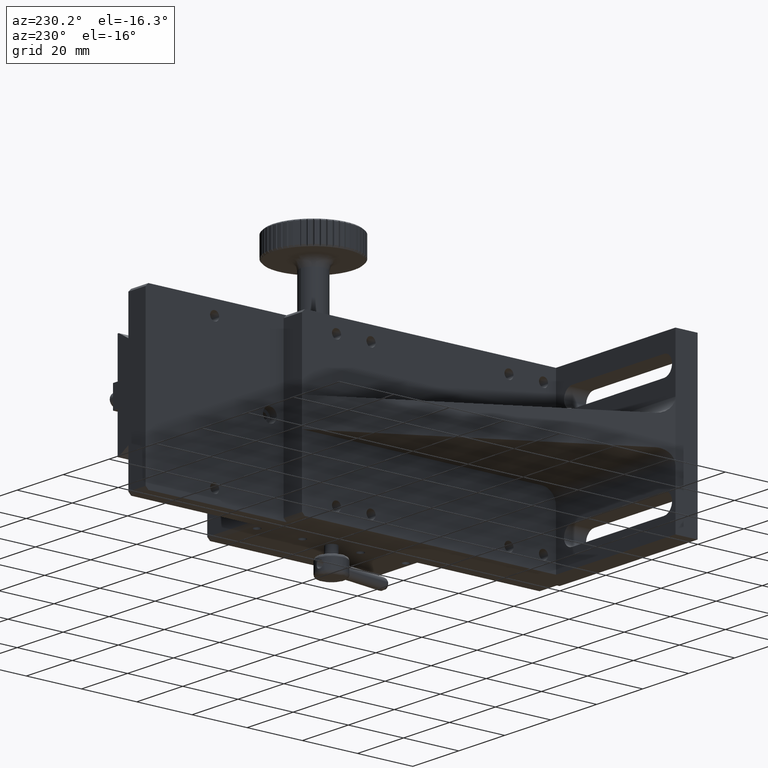
[diagram: clean part render]
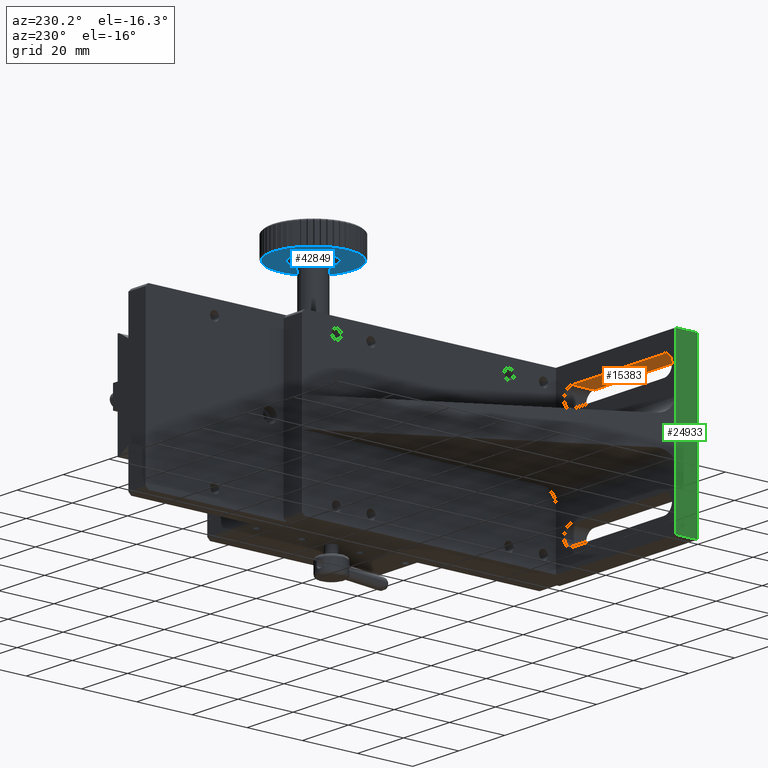
[diagram: same view with three faces highlighted in distinct colors, each labeled with its STEP entity id]
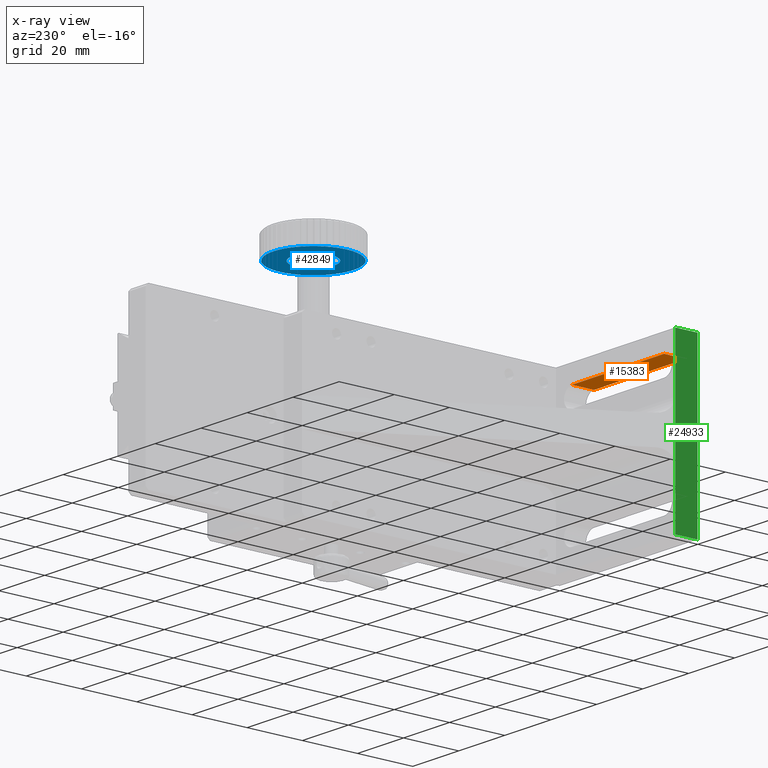
[diagram: x-ray of the same camera — body ghosted, the three highlighted faces saturated]
A machine part, auxiliary view with three faces highlighted in distinct colors.
The next image is the same camera in x-ray (body ghosted, the three faces saturated) — at least one of them is partly hidden behind the body in this view.
Their STEP definitions:

[orange] entity #15383 — the highlighted planar face has unit normal (0, -0, 1).
#2537 = AXIS2_PLACEMENT_3D ( 'NONE', #90711, #50768, #56721 ) ;
#5110 = ORIENTED_EDGE ( 'NONE', *, *, #97096, .F. ) ;
#6904 = CARTESIAN_POINT ( 'NONE',  ( -5.867379035314098878, 63.81536696983125267, 116.2794056282235289 ) ) ;
#11328 = VERTEX_POINT ( 'NONE', #39600 ) ;
#14476 = LINE ( 'NONE', #70603, #29400 ) ;
#15383 = ADVANCED_FACE ( 'NONE', ( #65343 ), #66943, .F. ) ;
#16083 = CARTESIAN_POINT ( 'NONE',  ( 41.13262096468594819, 63.81536696983123846, 116.2794056282235147 ) ) ;
#20233 = ORIENTED_EDGE ( 'NONE', *, *, #68047, .F. ) ;
#22796 = EDGE_LOOP ( 'NONE', ( #5110, #88088, #20233, #53390 ) ) ;
#24804 = CARTESIAN_POINT ( 'NONE',  ( -5.867379035314083779, 55.81536696983123136, 116.2794056282235289 ) ) ;
#29400 = VECTOR ( 'NONE', #72202, 1000.000000000000000 ) ;
#31059 = DIRECTION ( 'NONE',  ( 0.000000000000000000, 1.000000000000000000, 0.000000000000000000 ) ) ;
#31831 = LINE ( 'NONE', #24804, #106785 ) ;
#33420 = DIRECTION ( 'NONE',  ( -0.000000000000000000, -1.000000000000000000, -0.000000000000000000 ) ) ;
#33847 = DIRECTION ( 'NONE',  ( 1.000000000000000000, -1.334402673828313339E-16, 0.000000000000000000 ) ) ;
#39600 = CARTESIAN_POINT ( 'NONE',  ( 34.13262096468590556, 55.81536696983123136, 116.2794056282232589 ) ) ;
#39692 = LINE ( 'NONE', #97383, #82612 ) ;
#50768 = DIRECTION ( 'NONE',  ( 6.982962677686266711E-15, -0.000000000000000000, 1.000000000000000000 ) ) ;
#52746 = EDGE_CURVE ( 'NONE', #11328, #57044, #14476, .T. ) ;
#52803 = VERTEX_POINT ( 'NONE', #6904 ) ;
#53151 = EDGE_CURVE ( 'NONE', #52803, #95173, #66748, .T. ) ;
#53390 = ORIENTED_EDGE ( 'NONE', *, *, #53151, .T. ) ;
#56721 = DIRECTION ( 'NONE',  ( 1.000000000000000000, 0.000000000000000000, -6.982962677686266711E-15 ) ) ;
#57044 = VERTEX_POINT ( 'NONE', #95124 ) ;
#65343 = FACE_OUTER_BOUND ( 'NONE', #22796, .T. ) ;
#66748 = LINE ( 'NONE', #16083, #81096 ) ;
#66943 = PLANE ( 'NONE',  #2537 ) ;
#68047 = EDGE_CURVE ( 'NONE', #52803, #57044, #31831, .T. ) ;
#70603 = CARTESIAN_POINT ( 'NONE',  ( 19.13262096468574924, 55.81536696983123846, 116.2794056282232589 ) ) ;
#72202 = DIRECTION ( 'NONE',  ( -1.000000000000000000, -0.000000000000000000, 0.000000000000000000 ) ) ;
#81096 = VECTOR ( 'NONE', #33847, 1000.000000000000000 ) ;
#82612 = VECTOR ( 'NONE', #31059, 1000.000000000000000 ) ;
#87727 = CARTESIAN_POINT ( 'NONE',  ( 34.13262096468590556, 63.81536696983123846, 116.2794056282233868 ) ) ;
#88088 = ORIENTED_EDGE ( 'NONE', *, *, #52746, .T. ) ;
#90711 = CARTESIAN_POINT ( 'NONE',  ( 34.13262096468592688, 55.81536696983123136, 116.2794056282232589 ) ) ;
#95124 = CARTESIAN_POINT ( 'NONE',  ( -5.867379035314099767, 55.81536696983123846, 116.2794056282233868 ) ) ;
#95173 = VERTEX_POINT ( 'NONE', #87727 ) ;
#97096 = EDGE_CURVE ( 'NONE', #11328, #95173, #39692, .T. ) ;
#97383 = CARTESIAN_POINT ( 'NONE',  ( 34.13262096468592688, 55.81536696983123136, 116.2794056282232589 ) ) ;
#106785 = VECTOR ( 'NONE', #33420, 1000.000000000000000 ) ;

[blue] entity #42849 — the highlighted planar face has unit normal (0, -0, 1).
#131 = VERTEX_POINT ( 'NONE', #37341 ) ;
#503 = DIRECTION ( 'NONE',  ( 3.700743415417198986E-15, -6.476300976980043794E-15, 1.000000000000000000 ) ) ;
#636 = DIRECTION ( 'NONE',  ( 3.700743415417198986E-15, -6.476300976980043794E-15, 1.000000000000000000 ) ) ;
#944 = ORIENTED_EDGE ( 'NONE', *, *, #26462, .F. ) ;
#1025 = VERTEX_POINT ( 'NONE', #54408 ) ;
#1046 = CARTESIAN_POINT ( 'NONE',  ( 81.33806467964203080, 129.3552306186409169, 147.1794056287578485 ) ) ;
#1123 = CARTESIAN_POINT ( 'NONE',  ( 53.07635763115258953, 134.7464395702529032, 147.1794056287579338 ) ) ;
#1265 = VERTEX_POINT ( 'NONE', #77657 ) ;
#1292 = CARTESIAN_POINT ( 'NONE',  ( 56.94074408146641275, 140.8357382494265551, 147.1794056287579906 ) ) ;
#1663 = VERTEX_POINT ( 'NONE', #23100 ) ;
#1671 = DIRECTION ( 'NONE',  ( 3.700743415417198986E-15, -6.476300976980043794E-15, 1.000000000000000000 ) ) ;
#1694 = CARTESIAN_POINT ( 'NONE',  ( 66.86667711743220366, 144.7656931518159240, 147.1794056287579338 ) ) ;
#1712 = CARTESIAN_POINT ( 'NONE',  ( 66.86667711743217524, 130.2656931518159809, 147.1794056287579053 ) ) ;
#1744 = CARTESIAN_POINT ( 'NONE',  ( 66.86667711743217524, 130.2656931518159809, 147.1794056287579053 ) ) ;
#1761 = ORIENTED_EDGE ( 'NONE', *, *, #52402, .F. ) ;
#2661 = CARTESIAN_POINT ( 'NONE',  ( 66.86667711743217524, 130.2656931518159809, 147.1794056287579053 ) ) ;
#2707 = CARTESIAN_POINT ( 'NONE',  ( 66.86667711743217524, 137.7656931518159809, 147.1794056287580190 ) ) ;
#2830 = ORIENTED_EDGE ( 'NONE', *, *, #80506, .F. ) ;
#3141 = VERTEX_POINT ( 'NONE', #86699 ) ;
#3383 = CIRCLE ( 'NONE', #70644, 14.49999999999998579 ) ;
#3554 = DIRECTION ( 'NONE',  ( 0.000000000000000000, -1.000000000000000000, -5.742532885992194660E-15 ) ) ;
#3580 = DIRECTION ( 'NONE',  ( 3.700743415417198986E-15, -6.476300976980043794E-15, 1.000000000000000000 ) ) ;
#3687 = CARTESIAN_POINT ( 'NONE',  ( 66.86667711743217524, 130.2656931518159809, 147.1794056287579053 ) ) ;
#3953 = EDGE_CURVE ( 'NONE', #35547, #131, #106422, .T. ) ;
#5477 = DIRECTION ( 'NONE',  ( 0.000000000000000000, -1.000000000000000000, -5.742532885992194660E-15 ) ) ;
#5483 = DIRECTION ( 'NONE',  ( 0.000000000000000000, -1.000000000000000000, -5.742532885992194660E-15 ) ) ;
#5622 = VERTEX_POINT ( 'NONE', #30499 ) ;
#5640 = ORIENTED_EDGE ( 'NONE', *, *, #34449, .F. ) ;
#5960 = CARTESIAN_POINT ( 'NONE',  ( 80.65699660371184621, 134.7464395702526758, 147.1794056287579053 ) ) ;
#6004 = CIRCLE ( 'NONE', #68021, 14.49999999999998579 ) ;
#6198 = AXIS2_PLACEMENT_3D ( 'NONE', #28527, #102420, #12883 ) ;
#6206 = CARTESIAN_POINT ( 'NONE',  ( 66.86667711743217524, 130.2656931518159809, 147.1794056287579053 ) ) ;
#6235 = ORIENTED_EDGE ( 'NONE', *, *, #62872, .F. ) ;
#6552 = DIRECTION ( 'NONE',  ( 3.700743415417198986E-15, -6.476300976980043794E-15, 1.000000000000000000 ) ) ;
#6765 = DIRECTION ( 'NONE',  ( 3.700743415417198986E-15, -6.476300976980043794E-15, 1.000000000000000000 ) ) ;
#6769 = EDGE_CURVE ( 'NONE', #97453, #62200, #71344, .T. ) ;
#6812 = EDGE_CURVE ( 'NONE', #98140, #15489, #18001, .T. ) ;
#7128 = VERTEX_POINT ( 'NONE', #97655 ) ;
#7144 = CARTESIAN_POINT ( 'NONE',  ( 66.86667711743217524, 130.2656931518159809, 147.1794056287579053 ) ) ;
#7544 = ORIENTED_EDGE ( 'NONE', *, *, #87394, .F. ) ;
#7792 = CARTESIAN_POINT ( 'NONE',  ( 79.98666937818933320, 124.0918934241224179, 147.1794056287578201 ) ) ;
#7814 = DIRECTION ( 'NONE',  ( 3.700743415417198986E-15, -6.476300976980043794E-15, 1.000000000000000000 ) ) ;
#7847 = CIRCLE ( 'NONE', #30270, 14.49999999999998579 ) ;
#7962 = VERTEX_POINT ( 'NONE', #100521 ) ;
#8068 = EDGE_LOOP ( 'NONE', ( #16895, #2830, #27463, #13351, #71328, #44607, #70820, #101737, #98692, #106048, #84897, #50104, #73571, #55818, #49359, #41964, #17503, #105717, #13105, #29899, #44539, #944, #79866, #69831, #53290, #57913, #48984, #7544, #18645, #5640, #42339, #37679, #36017, #59750, #1761, #70823, #55929, #80836, #84976, #9377, #97763, #49813, #35223, #80632, #23314, #6235, #93384, #101394, #84777, #34315 ) ) ;
#8169 = DIRECTION ( 'NONE',  ( 0.000000000000000000, -1.000000000000000000, -5.742532885992194660E-15 ) ) ;
#8347 = DIRECTION ( 'NONE',  ( 0.000000000000000000, -1.000000000000000000, -5.742532885992194660E-15 ) ) ;
#8915 = EDGE_CURVE ( 'NONE', #80606, #69644, #71412, .T. ) ;
#9377 = ORIENTED_EDGE ( 'NONE', *, *, #29855, .F. ) ;
#9398 = EDGE_CURVE ( 'NONE', #99216, #98140, #58672, .T. ) ;
#9613 = EDGE_LOOP ( 'NONE', ( #77430, #105311 ) ) ;
#9847 = AXIS2_PLACEMENT_3D ( 'NONE', #38765, #72751, #63036 ) ;
#10300 = VERTEX_POINT ( 'NONE', #23196 ) ;
#10466 = DIRECTION ( 'NONE',  ( 0.000000000000000000, -1.000000000000000000, -5.742532885992194660E-15 ) ) ;
#10473 = CARTESIAN_POINT ( 'NONE',  ( 66.86667711743217524, 130.2656931518159809, 147.1794056287579053 ) ) ;
#10736 = DIRECTION ( 'NONE',  ( 3.700743415417198986E-15, -6.476300976980043794E-15, 1.000000000000000000 ) ) ;
#11281 = DIRECTION ( 'NONE',  ( 3.700743415417198986E-15, -6.476300976980043794E-15, 1.000000000000000000 ) ) ;
#11673 = AXIS2_PLACEMENT_3D ( 'NONE', #75107, #66449, #84277 ) ;
#11911 = EDGE_CURVE ( 'NONE', #50877, #82335, #53457, .T. ) ;
#12000 = DIRECTION ( 'NONE',  ( 0.000000000000000000, -1.000000000000000000, -5.742532885992194660E-15 ) ) ;
#12089 = AXIS2_PLACEMENT_3D ( 'NONE', #85944, #54579, #12000 ) ;
#12226 = AXIS2_PLACEMENT_3D ( 'NONE', #7144, #55711, #81091 ) ;
#12383 = AXIS2_PLACEMENT_3D ( 'NONE', #29018, #29550, #54354 ) ;
#12595 = CARTESIAN_POINT ( 'NONE',  ( 65.04934523075000641, 144.6513563208758910, 147.1794056287579906 ) ) ;
#12838 = EDGE_CURVE ( 'NONE', #1265, #32559, #31765, .T. ) ;
#12883 = DIRECTION ( 'NONE',  ( 0.000000000000000000, -1.000000000000000000, -5.742532885992194660E-15 ) ) ;
#12921 = VERTEX_POINT ( 'NONE', #33492 ) ;
#13053 = DIRECTION ( 'NONE',  ( 3.700743415417198986E-15, -6.476300976980043794E-15, 1.000000000000000000 ) ) ;
#13105 = ORIENTED_EDGE ( 'NONE', *, *, #79715, .F. ) ;
#13351 = ORIENTED_EDGE ( 'NONE', *, *, #66754, .F. ) ;
#13540 = DIRECTION ( 'NONE',  ( 3.700743415417198986E-15, -6.476300976980043794E-15, 1.000000000000000000 ) ) ;
#13601 = CARTESIAN_POINT ( 'NONE',  ( 66.86667711743217524, 130.2656931518159809, 147.1794056287579053 ) ) ;
#13768 = VERTEX_POINT ( 'NONE', #16388 ) ;
#13793 = CARTESIAN_POINT ( 'NONE',  ( 66.86667711743217524, 130.2656931518159809, 147.1794056287579053 ) ) ;
#13919 = VERTEX_POINT ( 'NONE', #57895 ) ;
#13978 = CARTESIAN_POINT ( 'NONE',  ( 75.38956327567291282, 118.5349467333792290, 147.1794056287577916 ) ) ;
#14158 = DIRECTION ( 'NONE',  ( 0.000000000000000000, -1.000000000000000000, -5.742532885992194660E-15 ) ) ;
#15252 = EDGE_CURVE ( 'NONE', #15489, #50877, #6004, .T. ) ;
#15344 = CARTESIAN_POINT ( 'NONE',  ( 81.10984225299809225, 132.9827222133089322, 147.1794056287578769 ) ) ;
#15489 = VERTEX_POINT ( 'NONE', #57776 ) ;
#16388 = CARTESIAN_POINT ( 'NONE',  ( 53.74668485667505280, 136.4394928795096860, 147.1794056287579622 ) ) ;
#16895 = ORIENTED_EDGE ( 'NONE', *, *, #28054, .F. ) ;
#17289 = AXIS2_PLACEMENT_3D ( 'NONE', #13601, #46494, #28718 ) ;
#17503 = ORIENTED_EDGE ( 'NONE', *, *, #50214, .F. ) ;
#17973 = DIRECTION ( 'NONE',  ( 0.000000000000000000, -1.000000000000000000, -5.742532885992194660E-15 ) ) ;
#18001 = CIRCLE ( 'NONE', #67956, 14.49999999999998579 ) ;
#18215 =( BOUNDED_CURVE ( )  B_SPLINE_CURVE ( 3, ( #2707, #53972, #35653, #37776 ),
 .UNSPECIFIED., .F., .T. ) 
 B_SPLINE_CURVE_WITH_KNOTS ( ( 4, 4 ),
 ( 0.000000000000000000, 1.000000000000000000 ),
 .UNSPECIFIED. ) 
 CURVE ( )  GEOMETRIC_REPRESENTATION_ITEM ( )  RATIONAL_B_SPLINE_CURVE ( ( 1.000000000000000000, 0.3333333333333345916, 0.3333333333333345916, 1.000000000000000000 ) ) 
 REPRESENTATION_ITEM ( '' )  );
#18498 = AXIS2_PLACEMENT_3D ( 'NONE', #71664, #98064, #79793 ) ;
#18597 = CARTESIAN_POINT ( 'NONE',  ( 66.86667711743217524, 130.2656931518159809, 147.1794056287579053 ) ) ;
#18606 = CIRCLE ( 'NONE', #87548, 14.49999999999998579 ) ;
#18645 = ORIENTED_EDGE ( 'NONE', *, *, #57623, .F. ) ;
#18871 = CARTESIAN_POINT ( 'NONE',  ( 66.86667711743217524, 130.2656931518159809, 147.1794056287579053 ) ) ;
#19003 = CIRCLE ( 'NONE', #74142, 14.49999999999998579 ) ;
#19260 = CARTESIAN_POINT ( 'NONE',  ( 81.86667711743217524, 130.2656931518160093, 147.1794056287579338 ) ) ;
#19779 = CARTESIAN_POINT ( 'NONE',  ( 66.86667711743217524, 130.2656931518159809, 147.1794056287579053 ) ) ;
#20160 = CIRCLE ( 'NONE', #87805, 14.49999999999998579 ) ;
#20508 = VERTEX_POINT ( 'NONE', #27603 ) ;
#21168 = CARTESIAN_POINT ( 'NONE',  ( 66.86667711743217524, 130.2656931518159809, 147.1794056287579053 ) ) ;
#21517 = CARTESIAN_POINT ( 'NONE',  ( 66.86667711743217524, 130.2656931518159809, 147.1794056287579053 ) ) ;
#21636 = CARTESIAN_POINT ( 'NONE',  ( 66.86667711743217524, 130.2656931518159809, 147.1794056287579053 ) ) ;
#21746 = EDGE_CURVE ( 'NONE', #49006, #20508, #90652, .T. ) ;
#21905 = CARTESIAN_POINT ( 'NONE',  ( 59.88124884295720562, 117.5592462911801306, 147.1794056287578485 ) ) ;
#22148 = CARTESIAN_POINT ( 'NONE',  ( 66.86667711743217524, 130.2656931518159809, 147.1794056287579053 ) ) ;
#22300 = EDGE_CURVE ( 'NONE', #51538, #51313, #45898, .T. ) ;
#22607 = AXIS2_PLACEMENT_3D ( 'NONE', #71514, #38610, #103868 ) ;
#23100 = CARTESIAN_POINT ( 'NONE',  ( 80.65699660371178936, 125.7849467333792006, 147.1794056287578485 ) ) ;
#23196 = CARTESIAN_POINT ( 'NONE',  ( 63.26067375354202227, 144.3101489881811119, 147.1794056287579906 ) ) ;
#23314 = ORIENTED_EDGE ( 'NONE', *, *, #100958, .F. ) ;
#23617 = CARTESIAN_POINT ( 'NONE',  ( 52.62351198186630796, 132.9827222133091595, 147.1794056287579338 ) ) ;
#23775 = CARTESIAN_POINT ( 'NONE',  ( 65.04934523074962271, 115.8800299827561986, 147.1794056287577916 ) ) ;
#24785 = EDGE_CURVE ( 'NONE', #72781, #55816, #94195, .T. ) ;
#25093 = EDGE_CURVE ( 'NONE', #62200, #37516, #45917, .T. ) ;
#25280 = CIRCLE ( 'NONE', #71783, 14.49999999999998579 ) ;
#25484 = DIRECTION ( 'NONE',  ( 3.700743415417198986E-15, -6.476300976980043794E-15, 1.000000000000000000 ) ) ;
#25529 = CIRCLE ( 'NONE', #53100, 14.49999999999998579 ) ;
#25603 = AXIS2_PLACEMENT_3D ( 'NONE', #93212, #28991, #52734 ) ;
#25609 = CARTESIAN_POINT ( 'NONE',  ( 66.86667711743217524, 130.2656931518159809, 147.1794056287579053 ) ) ;
#26012 = CIRCLE ( 'NONE', #12226, 14.49999999999998579 ) ;
#26164 = CIRCLE ( 'NONE', #12383, 14.49999999999998579 ) ;
#26462 = EDGE_CURVE ( 'NONE', #94324, #82586, #25280, .T. ) ;
#27463 = ORIENTED_EDGE ( 'NONE', *, *, #99458, .F. ) ;
#27593 = AXIS2_PLACEMENT_3D ( 'NONE', #21168, #54072, #5477 ) ;
#27603 = CARTESIAN_POINT ( 'NONE',  ( 58.34379095919154423, 141.9964395702527895, 147.1794056287579906 ) ) ;
#27628 = AXIS2_PLACEMENT_3D ( 'NONE', #18871, #68468, #43665 ) ;
#27865 = DIRECTION ( 'NONE',  ( 3.700743415417198986E-15, -6.476300976980043794E-15, 1.000000000000000000 ) ) ;
#28054 = EDGE_CURVE ( 'NONE', #58412, #67758, #87150, .T. ) ;
#28346 = EDGE_CURVE ( 'NONE', #87662, #71740, #57828, .T. ) ;
#28392 = CARTESIAN_POINT ( 'NONE',  ( 66.86667711743221787, 122.7656931518159524, 147.1794056287579338 ) ) ;
#28475 = EDGE_CURVE ( 'NONE', #69644, #1025, #7847, .T. ) ;
#28517 = EDGE_CURVE ( 'NONE', #7128, #92755, #70055, .T. ) ;
#28527 = CARTESIAN_POINT ( 'NONE',  ( 66.86667711743217524, 130.2656931518159809, 147.1794056287579053 ) ) ;
#28642 = AXIS2_PLACEMENT_3D ( 'NONE', #103222, #69792, #102685 ) ;
#28718 = DIRECTION ( 'NONE',  ( 0.000000000000000000, -1.000000000000000000, -5.742532885992194660E-15 ) ) ;
#28991 = DIRECTION ( 'NONE',  ( 3.700743415417198986E-15, -6.476300976980043794E-15, 1.000000000000000000 ) ) ;
#29018 = CARTESIAN_POINT ( 'NONE',  ( 66.86667711743217524, 130.2656931518159809, 147.1794056287579053 ) ) ;
#29550 = DIRECTION ( 'NONE',  ( 3.700743415417198986E-15, -6.476300976980043794E-15, 1.000000000000000000 ) ) ;
#29614 = CARTESIAN_POINT ( 'NONE',  ( 66.86667711743217524, 130.2656931518159809, 147.1794056287579053 ) ) ;
#29855 = EDGE_CURVE ( 'NONE', #63884, #78811, #77223, .T. ) ;
#29899 = ORIENTED_EDGE ( 'NONE', *, *, #24785, .F. ) ;
#30270 = AXIS2_PLACEMENT_3D ( 'NONE', #52671, #27865, #3554 ) ;
#30271 = EDGE_CURVE ( 'NONE', #71740, #94324, #25529, .T. ) ;
#30400 = CIRCLE ( 'NONE', #45977, 14.49999999999998579 ) ;
#30496 = DIRECTION ( 'NONE',  ( 3.700743415417198986E-15, -6.476300976980043794E-15, 1.000000000000000000 ) ) ;
#30499 = CARTESIAN_POINT ( 'NONE',  ( 63.26067375354165989, 116.2212373154509635, 147.1794056287578201 ) ) ;
#30842 = EDGE_CURVE ( 'NONE', #82335, #93707, #103061, .T. ) ;
#31765 = CIRCLE ( 'NONE', #61097, 14.49999999999998579 ) ;
#31964 = CARTESIAN_POINT ( 'NONE',  ( 75.38956327567302651, 141.9964395702526474, 147.1794056287579338 ) ) ;
#32069 = VERTEX_POINT ( 'NONE', #1046 ) ;
#32121 = AXIS2_PLACEMENT_3D ( 'NONE', #21517, #11281, #101906 ) ;
#32232 = EDGE_CURVE ( 'NONE', #78811, #40263, #18606, .T. ) ;
#32295 = CARTESIAN_POINT ( 'NONE',  ( 73.85210539190704537, 142.9721400124519448, 147.1794056287579338 ) ) ;
#32484 = EDGE_CURVE ( 'NONE', #71106, #63884, #34080, .T. ) ;
#32559 = VERTEX_POINT ( 'NONE', #102432 ) ;
#32702 = AXIS2_PLACEMENT_3D ( 'NONE', #97889, #63389, #81740 ) ;
#33492 = CARTESIAN_POINT ( 'NONE',  ( 54.62392219765290236, 122.4962046246207592, 147.1794056287578769 ) ) ;
#33531 = CARTESIAN_POINT ( 'NONE',  ( 66.86667711743217524, 130.2656931518159809, 147.1794056287579053 ) ) ;
#33971 = CARTESIAN_POINT ( 'NONE',  ( 66.86667711743217524, 130.2656931518159809, 147.1794056287579053 ) ) ;
#34080 = CIRCLE ( 'NONE', #89240, 14.49999999999998579 ) ;
#34093 = AXIS2_PLACEMENT_3D ( 'NONE', #19260, #43524, #75929 ) ;
#34315 = ORIENTED_EDGE ( 'NONE', *, *, #39465, .F. ) ;
#34449 = EDGE_CURVE ( 'NONE', #37516, #7962, #53093, .T. ) ;
#34658 = CARTESIAN_POINT ( 'NONE',  ( 66.86667711743217524, 130.2656931518159809, 147.1794056287579053 ) ) ;
#34665 = CARTESIAN_POINT ( 'NONE',  ( 66.86667711743217524, 130.2656931518159809, 147.1794056287579053 ) ) ;
#35186 = DIRECTION ( 'NONE',  ( 0.000000000000000000, -1.000000000000000000, -5.742532885992194660E-15 ) ) ;
#35223 = ORIENTED_EDGE ( 'NONE', *, *, #90389, .F. ) ;
#35547 = VERTEX_POINT ( 'NONE', #32295 ) ;
#35653 = CARTESIAN_POINT ( 'NONE',  ( 81.86667711743218945, 122.7656931518160093, 147.1794056287578769 ) ) ;
#35831 = DIRECTION ( 'NONE',  ( 0.000000000000000000, -1.000000000000000000, -5.742532885992194660E-15 ) ) ;
#36017 = ORIENTED_EDGE ( 'NONE', *, *, #60053, .F. ) ;
#36393 = EDGE_CURVE ( 'NONE', #103988, #32069, #72124, .T. ) ;
#36407 = CIRCLE ( 'NONE', #67195, 14.49999999999998579 ) ;
#36420 = VERTEX_POINT ( 'NONE', #78640 ) ;
#36801 = CARTESIAN_POINT ( 'NONE',  ( 66.86667711743217524, 130.2656931518159809, 147.1794056287579053 ) ) ;
#37341 = CARTESIAN_POINT ( 'NONE',  ( 72.20448313136002128, 143.7474521971955994, 147.1794056287579338 ) ) ;
#37394 = CARTESIAN_POINT ( 'NONE',  ( 66.86667711743217524, 130.2656931518159809, 147.1794056287579053 ) ) ;
#37516 = VERTEX_POINT ( 'NONE', #21905 ) ;
#37679 = ORIENTED_EDGE ( 'NONE', *, *, #6769, .F. ) ;
#37776 = CARTESIAN_POINT ( 'NONE',  ( 66.86667711743221787, 122.7656931518159524, 147.1794056287579338 ) ) ;
#38092 = AXIS2_PLACEMENT_3D ( 'NONE', #1744, #91874, #17973 ) ;
#38262 = CARTESIAN_POINT ( 'NONE',  ( 78.03911913768108377, 139.5083410031719211, 147.1794056287579338 ) ) ;
#38610 = DIRECTION ( 'NONE',  ( 3.700743415417198986E-15, -6.476300976980043794E-15, 1.000000000000000000 ) ) ;
#38614 = AXIS2_PLACEMENT_3D ( 'NONE', #84411, #76829, #10466 ) ;
#38765 = CARTESIAN_POINT ( 'NONE',  ( 66.86667711743217524, 130.2656931518159809, 147.1794056287579053 ) ) ;
#38785 = VERTEX_POINT ( 'NONE', #89613 ) ;
#38907 = AXIS2_PLACEMENT_3D ( 'NONE', #70291, #62208, #95116 ) ;
#39465 = EDGE_CURVE ( 'NONE', #67758, #10300, #71980, .T. ) ;
#40222 = DIRECTION ( 'NONE',  ( 3.700743415417198986E-15, -6.476300976980043794E-15, 1.000000000000000000 ) ) ;
#40263 = VERTEX_POINT ( 'NONE', #81502 ) ;
#40896 = AXIS2_PLACEMENT_3D ( 'NONE', #97919, #7814, #98977 ) ;
#41571 = AXIS2_PLACEMENT_3D ( 'NONE', #85211, #10736, #43131 ) ;
#41964 = ORIENTED_EDGE ( 'NONE', *, *, #65241, .F. ) ;
#42130 = DIRECTION ( 'NONE',  ( 3.700743415417198986E-15, -6.476300976980043794E-15, 1.000000000000000000 ) ) ;
#42339 = ORIENTED_EDGE ( 'NONE', *, *, #25093, .F. ) ;
#42443 = AXIS2_PLACEMENT_3D ( 'NONE', #73129, #40222, #8347 ) ;
#42652 = DIRECTION ( 'NONE',  ( 0.000000000000000000, -1.000000000000000000, -5.742532885992194660E-15 ) ) ;
#42849 = ADVANCED_FACE ( 'NONE', ( #59178, #76971 ), #92102, .F. ) ;
#43131 = DIRECTION ( 'NONE',  ( 0.000000000000000000, -1.000000000000000000, -5.742532885992194660E-15 ) ) ;
#43385 = DIRECTION ( 'NONE',  ( 3.700743415417198986E-15, -6.476300976980043794E-15, 1.000000000000000000 ) ) ;
#43393 = DIRECTION ( 'NONE',  ( 3.700743415417198986E-15, -6.476300976980043794E-15, 1.000000000000000000 ) ) ;
#43524 = DIRECTION ( 'NONE',  ( 3.491481338843133355E-15, -6.982962677686267499E-15, 1.000000000000000000 ) ) ;
#43665 = DIRECTION ( 'NONE',  ( 0.000000000000000000, -1.000000000000000000, -5.742532885992194660E-15 ) ) ;
#44168 = DIRECTION ( 'NONE',  ( 3.700743415417198986E-15, -6.476300976980043794E-15, 1.000000000000000000 ) ) ;
#44349 = CIRCLE ( 'NONE', #101167, 14.49999999999998579 ) ;
#44394 = DIRECTION ( 'NONE',  ( 0.000000000000000000, -1.000000000000000000, -5.742532885992194660E-15 ) ) ;
#44539 = ORIENTED_EDGE ( 'NONE', *, *, #46556, .F. ) ;
#44607 = ORIENTED_EDGE ( 'NONE', *, *, #60278, .F. ) ;
#45011 = AXIS2_PLACEMENT_3D ( 'NONE', #6206, #56386, #88273 ) ;
#45175 = VERTEX_POINT ( 'NONE', #31964 ) ;
#45898 = CIRCLE ( 'NONE', #6198, 14.49999999999998579 ) ;
#45917 = CIRCLE ( 'NONE', #90746, 14.49999999999998579 ) ;
#45977 = AXIS2_PLACEMENT_3D ( 'NONE', #47928, #64635, #106690 ) ;
#45982 = CIRCLE ( 'NONE', #94188, 14.49999999999998579 ) ;
#46494 = DIRECTION ( 'NONE',  ( 3.700743415417198986E-15, -6.476300976980043794E-15, 1.000000000000000000 ) ) ;
#46556 = EDGE_CURVE ( 'NONE', #82586, #72781, #20160, .T. ) ;
#46688 = DIRECTION ( 'NONE',  ( 0.000000000000000000, -1.000000000000000000, -5.742532885992194660E-15 ) ) ;
#46980 = DIRECTION ( 'NONE',  ( 0.000000000000000000, -1.000000000000000000, -5.742532885992194660E-15 ) ) ;
#47014 = AXIS2_PLACEMENT_3D ( 'NONE', #37394, #68696, #53059 ) ;
#47027 = CARTESIAN_POINT ( 'NONE',  ( 81.33806467964204501, 131.1761556849909311, 147.1794056287578769 ) ) ;
#47174 = CARTESIAN_POINT ( 'NONE',  ( 66.86667711743217524, 130.2656931518159809, 147.1794056287579053 ) ) ;
#47928 = CARTESIAN_POINT ( 'NONE',  ( 66.86667711743217524, 130.2656931518159809, 147.1794056287579053 ) ) ;
#48041 = DIRECTION ( 'NONE',  ( 0.000000000000000000, -1.000000000000000000, -5.742532885992194660E-15 ) ) ;
#48057 = CARTESIAN_POINT ( 'NONE',  ( 66.86667711743216103, 115.7656931518161230, 147.1794056287577064 ) ) ;
#48408 = CARTESIAN_POINT ( 'NONE',  ( 72.20448313135985074, 116.7839341064364618, 147.1794056287577916 ) ) ;
#48984 = ORIENTED_EDGE ( 'NONE', *, *, #22300, .F. ) ;
#49006 = VERTEX_POINT ( 'NONE', #86021 ) ;
#49217 = AXIS2_PLACEMENT_3D ( 'NONE', #19779, #84017, #93676 ) ;
#49359 = ORIENTED_EDGE ( 'NONE', *, *, #36393, .F. ) ;
#49676 = DIRECTION ( 'NONE',  ( 3.700743415417198986E-15, -6.476300976980043794E-15, 1.000000000000000000 ) ) ;
#49813 = ORIENTED_EDGE ( 'NONE', *, *, #89158, .F. ) ;
#50104 = ORIENTED_EDGE ( 'NONE', *, *, #9398, .F. ) ;
#50214 = EDGE_CURVE ( 'NONE', #56033, #1663, #86189, .T. ) ;
#50228 = CARTESIAN_POINT ( 'NONE',  ( 66.86667711743217524, 130.2656931518159809, 147.1794056287579053 ) ) ;
#50333 = CARTESIAN_POINT ( 'NONE',  ( 52.39528955522236231, 131.1761556849912154, 147.1794056287579338 ) ) ;
#50877 = VERTEX_POINT ( 'NONE', #53496 ) ;
#51081 = CARTESIAN_POINT ( 'NONE',  ( 51.86667711743220366, 137.7656931518158672, 147.1794056287580474 ) ) ;
#51199 = EDGE_CURVE ( 'NONE', #40263, #80606, #58577, .T. ) ;
#51313 = VERTEX_POINT ( 'NONE', #48057 ) ;
#51538 = VERTEX_POINT ( 'NONE', #23775 ) ;
#51770 = DIRECTION ( 'NONE',  ( 0.000000000000000000, -1.000000000000000000, -5.742532885992194660E-15 ) ) ;
#52402 = EDGE_CURVE ( 'NONE', #1025, #12921, #68975, .T. ) ;
#52671 = CARTESIAN_POINT ( 'NONE',  ( 66.86667711743217524, 130.2656931518159809, 147.1794056287579053 ) ) ;
#52734 = DIRECTION ( 'NONE',  ( 0.000000000000000000, -1.000000000000000000, -5.742532885992194660E-15 ) ) ;
#52913 = CIRCLE ( 'NONE', #18498, 14.49999999999998579 ) ;
#53059 = DIRECTION ( 'NONE',  ( 0.000000000000000000, -1.000000000000000000, -5.742532885992194660E-15 ) ) ;
#53093 = CIRCLE ( 'NONE', #72039, 14.49999999999998579 ) ;
#53100 = AXIS2_PLACEMENT_3D ( 'NONE', #10473, #43393, #93549 ) ;
#53290 = ORIENTED_EDGE ( 'NONE', *, *, #83789, .F. ) ;
#53457 = CIRCLE ( 'NONE', #12089, 14.49999999999998579 ) ;
#53496 = CARTESIAN_POINT ( 'NONE',  ( 79.10943203721137706, 138.0351816790113446, 147.1794056287579338 ) ) ;
#53654 = CIRCLE ( 'NONE', #41571, 14.49999999999998579 ) ;
#53972 = CARTESIAN_POINT ( 'NONE',  ( 81.86667711743214682, 137.7656931518159809, 147.1794056287579338 ) ) ;
#54072 = DIRECTION ( 'NONE',  ( 3.700743415417198986E-15, -6.476300976980043794E-15, 1.000000000000000000 ) ) ;
#54354 = DIRECTION ( 'NONE',  ( 0.000000000000000000, -1.000000000000000000, -5.742532885992194660E-15 ) ) ;
#54408 = CARTESIAN_POINT ( 'NONE',  ( 53.74668485667484674, 124.0918934241226310, 147.1794056287579053 ) ) ;
#54579 = DIRECTION ( 'NONE',  ( 3.700743415417198986E-15, -6.476300976980043794E-15, 1.000000000000000000 ) ) ;
#55711 = DIRECTION ( 'NONE',  ( 3.700743415417198986E-15, -6.476300976980043794E-15, 1.000000000000000000 ) ) ;
#55816 = VERTEX_POINT ( 'NONE', #88775 ) ;
#55818 = ORIENTED_EDGE ( 'NONE', *, *, #83312, .F. ) ;
#55929 = ORIENTED_EDGE ( 'NONE', *, *, #8915, .F. ) ;
#56033 = VERTEX_POINT ( 'NONE', #7792 ) ;
#56386 = DIRECTION ( 'NONE',  ( 3.700743415417198986E-15, -6.476300976980043794E-15, 1.000000000000000000 ) ) ;
#57444 = CARTESIAN_POINT ( 'NONE',  ( 56.94074408146614985, 119.6956480542057051, 147.1794056287578485 ) ) ;
#57623 = EDGE_CURVE ( 'NONE', #7962, #5622, #26012, .T. ) ;
#57776 = CARTESIAN_POINT ( 'NONE',  ( 79.98666937818941847, 136.4394928795094870, 147.1794056287579053 ) ) ;
#57828 = CIRCLE ( 'NONE', #49217, 14.49999999999998579 ) ;
#57895 = CARTESIAN_POINT ( 'NONE',  ( 70.47268048132256979, 144.3101489881810835, 147.1794056287579622 ) ) ;
#57913 = ORIENTED_EDGE ( 'NONE', *, *, #95099, .F. ) ;
#58130 = CIRCLE ( 'NONE', #42443, 14.49999999999998579 ) ;
#58412 = VERTEX_POINT ( 'NONE', #1694 ) ;
#58577 = CIRCLE ( 'NONE', #72374, 14.49999999999998579 ) ;
#58672 = CIRCLE ( 'NONE', #101709, 14.49999999999998579 ) ;
#58922 = DIRECTION ( 'NONE',  ( 0.000000000000000000, -1.000000000000000000, -5.742532885992194660E-15 ) ) ;
#59178 = FACE_OUTER_BOUND ( 'NONE', #8068, .T. ) ;
#59370 = DIRECTION ( 'NONE',  ( 0.000000000000000000, -1.000000000000000000, -5.742532885992194660E-15 ) ) ;
#59750 = ORIENTED_EDGE ( 'NONE', *, *, #89282, .F. ) ;
#59829 = CIRCLE ( 'NONE', #9847, 14.49999999999998579 ) ;
#59836 = CIRCLE ( 'NONE', #40896, 14.49999999999998579 ) ;
#60018 = AXIS2_PLACEMENT_3D ( 'NONE', #18597, #91970, #35831 ) ;
#60053 = EDGE_CURVE ( 'NONE', #38785, #97453, #53654, .T. ) ;
#60278 = EDGE_CURVE ( 'NONE', #45175, #35547, #36407, .T. ) ;
#60315 = CIRCLE ( 'NONE', #27593, 14.49999999999998579 ) ;
#60383 = CARTESIAN_POINT ( 'NONE',  ( 66.86667711743217524, 130.2656931518159809, 147.1794056287579053 ) ) ;
#61097 = AXIS2_PLACEMENT_3D ( 'NONE', #50228, #42130, #59370 ) ;
#61294 = CARTESIAN_POINT ( 'NONE',  ( 66.86667711743217524, 137.7656931518159809, 147.1794056287580190 ) ) ;
#62200 = VERTEX_POINT ( 'NONE', #97115 ) ;
#62208 = DIRECTION ( 'NONE',  ( 3.700743415417198986E-15, -6.476300976980043794E-15, 1.000000000000000000 ) ) ;
#62872 = EDGE_CURVE ( 'NONE', #20508, #95614, #19003, .T. ) ;
#63034 = DIRECTION ( 'NONE',  ( 0.000000000000000000, -1.000000000000000000, -5.742532885992194660E-15 ) ) ;
#63036 = DIRECTION ( 'NONE',  ( 0.000000000000000000, -1.000000000000000000, -5.742532885992194660E-15 ) ) ;
#63235 = CARTESIAN_POINT ( 'NONE',  ( 66.86667711743217524, 130.2656931518159809, 147.1794056287579053 ) ) ;
#63389 = DIRECTION ( 'NONE',  ( 3.700743415417198986E-15, -6.476300976980043794E-15, 1.000000000000000000 ) ) ;
#63734 = CARTESIAN_POINT ( 'NONE',  ( 52.62351198186620849, 127.5486640903232001, 147.1794056287579338 ) ) ;
#63777 = CARTESIAN_POINT ( 'NONE',  ( 68.68400900411444354, 115.8800299827561844, 147.1794056287577916 ) ) ;
#63884 = VERTEX_POINT ( 'NONE', #23617 ) ;
#64635 = DIRECTION ( 'NONE',  ( 3.700743415417198986E-15, -6.476300976980043794E-15, 1.000000000000000000 ) ) ;
#64952 = DIRECTION ( 'NONE',  ( 3.700743415417198986E-15, -6.476300976980043794E-15, 1.000000000000000000 ) ) ;
#65071 = EDGE_CURVE ( 'NONE', #3141, #49006, #70740, .T. ) ;
#65241 = EDGE_CURVE ( 'NONE', #1663, #103988, #76008, .T. ) ;
#66449 = DIRECTION ( 'NONE',  ( 3.700743415417198986E-15, -6.476300976980043794E-15, 1.000000000000000000 ) ) ;
#66754 = EDGE_CURVE ( 'NONE', #131, #13919, #103380, .T. ) ;
#66870 = DIRECTION ( 'NONE',  ( 0.000000000000000000, -1.000000000000000000, -5.742532885992194660E-15 ) ) ;
#67013 = CARTESIAN_POINT ( 'NONE',  ( 68.68400900411461407, 144.6513563208758342, 147.1794056287579906 ) ) ;
#67195 = AXIS2_PLACEMENT_3D ( 'NONE', #3687, #44168, #76057 ) ;
#67556 = DIRECTION ( 'NONE',  ( 3.700743415417198986E-15, -6.476300976980043794E-15, 1.000000000000000000 ) ) ;
#67758 = VERTEX_POINT ( 'NONE', #12595 ) ;
#67944 = CARTESIAN_POINT ( 'NONE',  ( 66.86667711743217524, 130.2656931518159809, 147.1794056287579053 ) ) ;
#67956 = AXIS2_PLACEMENT_3D ( 'NONE', #25609, #43385, #76310 ) ;
#68021 = AXIS2_PLACEMENT_3D ( 'NONE', #80509, #6552, #5483 ) ;
#68468 = DIRECTION ( 'NONE',  ( 3.700743415417198986E-15, -6.476300976980043794E-15, 1.000000000000000000 ) ) ;
#68696 = DIRECTION ( 'NONE',  ( 3.700743415417198986E-15, -6.476300976980043794E-15, 1.000000000000000000 ) ) ;
#68975 = CIRCLE ( 'NONE', #27628, 14.49999999999998579 ) ;
#68981 = EDGE_CURVE ( 'NONE', #106106, #99216, #26164, .T. ) ;
#69644 = VERTEX_POINT ( 'NONE', #74804 ) ;
#69792 = DIRECTION ( 'NONE',  ( 3.700743415417198986E-15, -6.476300976980043794E-15, 1.000000000000000000 ) ) ;
#69831 = ORIENTED_EDGE ( 'NONE', *, *, #28346, .F. ) ;
#69937 = CARTESIAN_POINT ( 'NONE',  ( 66.86667711743217524, 130.2656931518159809, 147.1794056287579053 ) ) ;
#70055 =( BOUNDED_CURVE ( )  B_SPLINE_CURVE ( 3, ( #28392, #75387, #51081, #61294 ),
 .UNSPECIFIED., .F., .F. ) 
 B_SPLINE_CURVE_WITH_KNOTS ( ( 4, 4 ),
 ( 0.000000000000000000, 1.000000000000000000 ),
 .UNSPECIFIED. ) 
 CURVE ( )  GEOMETRIC_REPRESENTATION_ITEM ( )  RATIONAL_B_SPLINE_CURVE ( ( 1.000000000000000000, 0.3333333333333345916, 0.3333333333333345916, 1.000000000000000000 ) ) 
 REPRESENTATION_ITEM ( '' )  );
#70291 = CARTESIAN_POINT ( 'NONE',  ( 66.86667711743217524, 130.2656931518159809, 147.1794056287579053 ) ) ;
#70644 = AXIS2_PLACEMENT_3D ( 'NONE', #70802, #103687, #44394 ) ;
#70740 = CIRCLE ( 'NONE', #45011, 14.49999999999998579 ) ;
#70802 = CARTESIAN_POINT ( 'NONE',  ( 66.86667711743217524, 130.2656931518159809, 147.1794056287579053 ) ) ;
#70820 = ORIENTED_EDGE ( 'NONE', *, *, #106015, .F. ) ;
#70823 = ORIENTED_EDGE ( 'NONE', *, *, #28475, .F. ) ;
#71106 = VERTEX_POINT ( 'NONE', #1123 ) ;
#71328 = ORIENTED_EDGE ( 'NONE', *, *, #3953, .F. ) ;
#71344 = CIRCLE ( 'NONE', #38614, 14.49999999999998579 ) ;
#71412 = CIRCLE ( 'NONE', #95531, 14.49999999999998579 ) ;
#71514 = CARTESIAN_POINT ( 'NONE',  ( 66.86667711743217524, 130.2656931518159809, 147.1794056287579053 ) ) ;
#71664 = CARTESIAN_POINT ( 'NONE',  ( 66.86667711743217524, 130.2656931518159809, 147.1794056287579053 ) ) ;
#71740 = VERTEX_POINT ( 'NONE', #48408 ) ;
#71783 = AXIS2_PLACEMENT_3D ( 'NONE', #90345, #72023, #80679 ) ;
#71930 = AXIS2_PLACEMENT_3D ( 'NONE', #34665, #67556, #35186 ) ;
#71980 = CIRCLE ( 'NONE', #11673, 14.49999999999998579 ) ;
#72023 = DIRECTION ( 'NONE',  ( 3.700743415417198986E-15, -6.476300976980043794E-15, 1.000000000000000000 ) ) ;
#72039 = AXIS2_PLACEMENT_3D ( 'NONE', #2661, #49676, #42652 ) ;
#72124 = CIRCLE ( 'NONE', #25603, 14.49999999999998579 ) ;
#72374 = AXIS2_PLACEMENT_3D ( 'NONE', #21636, #106281, #46980 ) ;
#72751 = DIRECTION ( 'NONE',  ( 3.700743415417198986E-15, -6.476300976980043794E-15, 1.000000000000000000 ) ) ;
#72781 = VERTEX_POINT ( 'NONE', #81212 ) ;
#73086 = CARTESIAN_POINT ( 'NONE',  ( 76.79261015339812957, 140.8357382494263845, 147.1794056287579338 ) ) ;
#73129 = CARTESIAN_POINT ( 'NONE',  ( 66.86667711743217524, 130.2656931518159809, 147.1794056287579053 ) ) ;
#73571 = ORIENTED_EDGE ( 'NONE', *, *, #68981, .F. ) ;
#74142 = AXIS2_PLACEMENT_3D ( 'NONE', #33971, #503, #66870 ) ;
#74231 = EDGE_CURVE ( 'NONE', #36420, #56033, #81549, .T. ) ;
#74326 = CARTESIAN_POINT ( 'NONE',  ( 66.86667711743217524, 137.7656931518159809, 147.1794056287580190 ) ) ;
#74804 = CARTESIAN_POINT ( 'NONE',  ( 53.07635763115244742, 125.7849467333794422, 147.1794056287579053 ) ) ;
#75107 = CARTESIAN_POINT ( 'NONE',  ( 66.86667711743217524, 130.2656931518159809, 147.1794056287579053 ) ) ;
#75387 = CARTESIAN_POINT ( 'NONE',  ( 51.86667711743228892, 122.7656931518159240, 147.1794056287579338 ) ) ;
#75929 = DIRECTION ( 'NONE',  ( 0.000000000000000000, -1.000000000000000000, -6.982962677686267499E-15 ) ) ;
#76008 = CIRCLE ( 'NONE', #22607, 14.49999999999998579 ) ;
#76057 = DIRECTION ( 'NONE',  ( 0.000000000000000000, -1.000000000000000000, -5.742532885992194660E-15 ) ) ;
#76310 = DIRECTION ( 'NONE',  ( 0.000000000000000000, -1.000000000000000000, -5.742532885992194660E-15 ) ) ;
#76829 = DIRECTION ( 'NONE',  ( 3.700743415417198986E-15, -6.476300976980043794E-15, 1.000000000000000000 ) ) ;
#76971 = FACE_BOUND ( 'NONE', #9613, .T. ) ;
#77223 = CIRCLE ( 'NONE', #60018, 14.49999999999998579 ) ;
#77430 = ORIENTED_EDGE ( 'NONE', *, *, #28517, .F. ) ;
#77657 = CARTESIAN_POINT ( 'NONE',  ( 55.69423509718340881, 139.5083410031721201, 147.1794056287579906 ) ) ;
#78640 = CARTESIAN_POINT ( 'NONE',  ( 79.10943203721126338, 122.4962046246205460, 147.1794056287578201 ) ) ;
#78811 = VERTEX_POINT ( 'NONE', #50333 ) ;
#79302 = AXIS2_PLACEMENT_3D ( 'NONE', #47174, #64952, #97862 ) ;
#79715 = EDGE_CURVE ( 'NONE', #55816, #36420, #93252, .T. ) ;
#79793 = DIRECTION ( 'NONE',  ( 0.000000000000000000, -1.000000000000000000, -5.742532885992194660E-15 ) ) ;
#79866 = ORIENTED_EDGE ( 'NONE', *, *, #30271, .F. ) ;
#80506 = EDGE_CURVE ( 'NONE', #85311, #58412, #98392, .T. ) ;
#80509 = CARTESIAN_POINT ( 'NONE',  ( 66.86667711743217524, 130.2656931518159809, 147.1794056287579053 ) ) ;
#80606 = VERTEX_POINT ( 'NONE', #63734 ) ;
#80632 = ORIENTED_EDGE ( 'NONE', *, *, #12838, .F. ) ;
#80679 = DIRECTION ( 'NONE',  ( 0.000000000000000000, -1.000000000000000000, -5.742532885992194660E-15 ) ) ;
#80701 = AXIS2_PLACEMENT_3D ( 'NONE', #34658, #25484, #58922 ) ;
#80836 = ORIENTED_EDGE ( 'NONE', *, *, #51199, .F. ) ;
#81091 = DIRECTION ( 'NONE',  ( 0.000000000000000000, -1.000000000000000000, -5.742532885992194660E-15 ) ) ;
#81212 = CARTESIAN_POINT ( 'NONE',  ( 76.79261015339801588, 119.6956480542055345, 147.1794056287577916 ) ) ;
#81502 = CARTESIAN_POINT ( 'NONE',  ( 52.39528955522230547, 129.3552306186411442, 147.1794056287579338 ) ) ;
#81549 = CIRCLE ( 'NONE', #47014, 14.49999999999998579 ) ;
#81740 = DIRECTION ( 'NONE',  ( 0.000000000000000000, -1.000000000000000000, -5.742532885992194660E-15 ) ) ;
#82335 = VERTEX_POINT ( 'NONE', #38262 ) ;
#82586 = VERTEX_POINT ( 'NONE', #13978 ) ;
#82951 = CARTESIAN_POINT ( 'NONE',  ( 73.85210539190691748, 117.5592462911800027, 147.1794056287577916 ) ) ;
#83312 = EDGE_CURVE ( 'NONE', #32069, #106106, #59836, .T. ) ;
#83789 = EDGE_CURVE ( 'NONE', #101567, #87662, #58130, .T. ) ;
#84017 = DIRECTION ( 'NONE',  ( 3.700743415417198986E-15, -6.476300976980043794E-15, 1.000000000000000000 ) ) ;
#84277 = DIRECTION ( 'NONE',  ( 0.000000000000000000, -1.000000000000000000, -5.742532885992194660E-15 ) ) ;
#84411 = CARTESIAN_POINT ( 'NONE',  ( 66.86667711743217524, 130.2656931518159809, 147.1794056287579053 ) ) ;
#84457 = CIRCLE ( 'NONE', #79302, 14.49999999999998579 ) ;
#84777 = ORIENTED_EDGE ( 'NONE', *, *, #105857, .F. ) ;
#84897 = ORIENTED_EDGE ( 'NONE', *, *, #6812, .F. ) ;
#84976 = ORIENTED_EDGE ( 'NONE', *, *, #32232, .F. ) ;
#85211 = CARTESIAN_POINT ( 'NONE',  ( 66.86667711743217524, 130.2656931518159809, 147.1794056287579053 ) ) ;
#85311 = VERTEX_POINT ( 'NONE', #67013 ) ;
#85768 = DIRECTION ( 'NONE',  ( 0.000000000000000000, -1.000000000000000000, -5.742532885992194660E-15 ) ) ;
#85944 = CARTESIAN_POINT ( 'NONE',  ( 66.86667711743217524, 130.2656931518159809, 147.1794056287579053 ) ) ;
#86021 = CARTESIAN_POINT ( 'NONE',  ( 59.88124884295753247, 142.9721400124520585, 147.1794056287579906 ) ) ;
#86189 = CIRCLE ( 'NONE', #103308, 14.49999999999998579 ) ;
#86699 = CARTESIAN_POINT ( 'NONE',  ( 61.52887110350457789, 143.7474521971956847, 147.1794056287579906 ) ) ;
#87032 = DIRECTION ( 'NONE',  ( 3.700743415417198986E-15, -6.476300976980043794E-15, 1.000000000000000000 ) ) ;
#87150 = CIRCLE ( 'NONE', #38907, 14.49999999999998579 ) ;
#87357 = DIRECTION ( 'NONE',  ( 3.700743415417198986E-15, -6.476300976980043794E-15, 1.000000000000000000 ) ) ;
#87394 = EDGE_CURVE ( 'NONE', #5622, #51538, #30400, .T. ) ;
#87548 = AXIS2_PLACEMENT_3D ( 'NONE', #67944, #100843, #51770 ) ;
#87662 = VERTEX_POINT ( 'NONE', #91989 ) ;
#87805 = AXIS2_PLACEMENT_3D ( 'NONE', #22148, #13540, #48041 ) ;
#88044 = DIRECTION ( 'NONE',  ( 0.000000000000000000, -1.000000000000000000, -5.742532885992194660E-15 ) ) ;
#88110 = AXIS2_PLACEMENT_3D ( 'NONE', #36801, #13053, #88044 ) ;
#88273 = DIRECTION ( 'NONE',  ( 0.000000000000000000, -1.000000000000000000, -5.742532885992194660E-15 ) ) ;
#88775 = CARTESIAN_POINT ( 'NONE',  ( 78.03911913768101272, 121.0230453004599553, 147.1794056287577916 ) ) ;
#89158 = EDGE_CURVE ( 'NONE', #13768, #71106, #52913, .T. ) ;
#89240 = AXIS2_PLACEMENT_3D ( 'NONE', #60383, #6765, #85768 ) ;
#89282 = EDGE_CURVE ( 'NONE', #12921, #38785, #59829, .T. ) ;
#89613 = CARTESIAN_POINT ( 'NONE',  ( 55.69423509718322407, 121.0230453004601827, 147.1794056287578769 ) ) ;
#90345 = CARTESIAN_POINT ( 'NONE',  ( 66.86667711743217524, 130.2656931518159809, 147.1794056287579053 ) ) ;
#90389 = EDGE_CURVE ( 'NONE', #32559, #13768, #44349, .T. ) ;
#90652 = CIRCLE ( 'NONE', #28642, 14.49999999999998579 ) ;
#90746 = AXIS2_PLACEMENT_3D ( 'NONE', #29614, #87357, #63034 ) ;
#91101 = CARTESIAN_POINT ( 'NONE',  ( 81.10984225299803541, 127.5486640903229443, 147.1794056287578485 ) ) ;
#91874 = DIRECTION ( 'NONE',  ( 3.700743415417198986E-15, -6.476300976980043794E-15, 1.000000000000000000 ) ) ;
#91970 = DIRECTION ( 'NONE',  ( 3.700743415417198986E-15, -6.476300976980043794E-15, 1.000000000000000000 ) ) ;
#91989 = CARTESIAN_POINT ( 'NONE',  ( 70.47268048132242768, 116.2212373154509066, 147.1794056287577916 ) ) ;
#92102 = PLANE ( 'NONE',  #34093 ) ;
#92755 = VERTEX_POINT ( 'NONE', #74326 ) ;
#93212 = CARTESIAN_POINT ( 'NONE',  ( 66.86667711743217524, 130.2656931518159809, 147.1794056287579053 ) ) ;
#93252 = CIRCLE ( 'NONE', #38092, 14.49999999999998579 ) ;
#93384 = ORIENTED_EDGE ( 'NONE', *, *, #21746, .F. ) ;
#93549 = DIRECTION ( 'NONE',  ( 0.000000000000000000, -1.000000000000000000, -5.742532885992194660E-15 ) ) ;
#93676 = DIRECTION ( 'NONE',  ( 0.000000000000000000, -1.000000000000000000, -5.742532885992194660E-15 ) ) ;
#93707 = VERTEX_POINT ( 'NONE', #73086 ) ;
#94188 = AXIS2_PLACEMENT_3D ( 'NONE', #13793, #30496, #46688 ) ;
#94195 = CIRCLE ( 'NONE', #32121, 14.49999999999998579 ) ;
#94324 = VERTEX_POINT ( 'NONE', #82951 ) ;
#95099 = EDGE_CURVE ( 'NONE', #51313, #101567, #45982, .T. ) ;
#95116 = DIRECTION ( 'NONE',  ( 0.000000000000000000, -1.000000000000000000, -5.742532885992194660E-15 ) ) ;
#95531 = AXIS2_PLACEMENT_3D ( 'NONE', #63235, #87032, #14158 ) ;
#95614 = VERTEX_POINT ( 'NONE', #1292 ) ;
#97115 = CARTESIAN_POINT ( 'NONE',  ( 58.34379095919121738, 118.5349467333793996, 147.1794056287578485 ) ) ;
#97453 = VERTEX_POINT ( 'NONE', #57444 ) ;
#97655 = CARTESIAN_POINT ( 'NONE',  ( 66.86667711743221787, 122.7656931518159524, 147.1794056287579338 ) ) ;
#97763 = ORIENTED_EDGE ( 'NONE', *, *, #32484, .F. ) ;
#97862 = DIRECTION ( 'NONE',  ( 0.000000000000000000, -1.000000000000000000, -5.742532885992194660E-15 ) ) ;
#97889 = CARTESIAN_POINT ( 'NONE',  ( 66.86667711743217524, 130.2656931518159809, 147.1794056287579053 ) ) ;
#97919 = CARTESIAN_POINT ( 'NONE',  ( 66.86667711743217524, 130.2656931518159809, 147.1794056287579053 ) ) ;
#98064 = DIRECTION ( 'NONE',  ( 3.700743415417198986E-15, -6.476300976980043794E-15, 1.000000000000000000 ) ) ;
#98140 = VERTEX_POINT ( 'NONE', #5960 ) ;
#98392 = CIRCLE ( 'NONE', #88110, 14.49999999999998579 ) ;
#98692 = ORIENTED_EDGE ( 'NONE', *, *, #11911, .F. ) ;
#98977 = DIRECTION ( 'NONE',  ( 0.000000000000000000, -1.000000000000000000, -5.742532885992194660E-15 ) ) ;
#99216 = VERTEX_POINT ( 'NONE', #15344 ) ;
#99458 = EDGE_CURVE ( 'NONE', #13919, #85311, #84457, .T. ) ;
#100521 = CARTESIAN_POINT ( 'NONE',  ( 61.52887110350422262, 116.7839341064364902, 147.1794056287578485 ) ) ;
#100843 = DIRECTION ( 'NONE',  ( 3.700743415417198986E-15, -6.476300976980043794E-15, 1.000000000000000000 ) ) ;
#100958 = EDGE_CURVE ( 'NONE', #95614, #1265, #3383, .T. ) ;
#100965 = DIRECTION ( 'NONE',  ( 0.000000000000000000, -1.000000000000000000, -5.742532885992194660E-15 ) ) ;
#101167 = AXIS2_PLACEMENT_3D ( 'NONE', #69937, #3580, #102829 ) ;
#101394 = ORIENTED_EDGE ( 'NONE', *, *, #65071, .F. ) ;
#101567 = VERTEX_POINT ( 'NONE', #63777 ) ;
#101709 = AXIS2_PLACEMENT_3D ( 'NONE', #33531, #1671, #8169 ) ;
#101737 = ORIENTED_EDGE ( 'NONE', *, *, #30842, .F. ) ;
#101906 = DIRECTION ( 'NONE',  ( 0.000000000000000000, -1.000000000000000000, -5.742532885992194660E-15 ) ) ;
#102412 = EDGE_CURVE ( 'NONE', #92755, #7128, #18215, .T. ) ;
#102420 = DIRECTION ( 'NONE',  ( 3.700743415417198986E-15, -6.476300976980043794E-15, 1.000000000000000000 ) ) ;
#102432 = CARTESIAN_POINT ( 'NONE',  ( 54.62392219765310841, 138.0351816790116004, 147.1794056287579622 ) ) ;
#102685 = DIRECTION ( 'NONE',  ( 0.000000000000000000, -1.000000000000000000, -5.742532885992194660E-15 ) ) ;
#102829 = DIRECTION ( 'NONE',  ( 0.000000000000000000, -1.000000000000000000, -5.742532885992194660E-15 ) ) ;
#103061 = CIRCLE ( 'NONE', #80701, 14.49999999999998579 ) ;
#103222 = CARTESIAN_POINT ( 'NONE',  ( 66.86667711743217524, 130.2656931518159809, 147.1794056287579053 ) ) ;
#103308 = AXIS2_PLACEMENT_3D ( 'NONE', #1712, #636, #100965 ) ;
#103380 = CIRCLE ( 'NONE', #32702, 14.49999999999998579 ) ;
#103687 = DIRECTION ( 'NONE',  ( 3.700743415417198986E-15, -6.476300976980043794E-15, 1.000000000000000000 ) ) ;
#103868 = DIRECTION ( 'NONE',  ( 0.000000000000000000, -1.000000000000000000, -5.742532885992194660E-15 ) ) ;
#103988 = VERTEX_POINT ( 'NONE', #91101 ) ;
#105311 = ORIENTED_EDGE ( 'NONE', *, *, #102412, .F. ) ;
#105717 = ORIENTED_EDGE ( 'NONE', *, *, #74231, .F. ) ;
#105857 = EDGE_CURVE ( 'NONE', #10300, #3141, #106753, .T. ) ;
#106015 = EDGE_CURVE ( 'NONE', #93707, #45175, #60315, .T. ) ;
#106048 = ORIENTED_EDGE ( 'NONE', *, *, #15252, .F. ) ;
#106106 = VERTEX_POINT ( 'NONE', #47027 ) ;
#106281 = DIRECTION ( 'NONE',  ( 3.700743415417198986E-15, -6.476300976980043794E-15, 1.000000000000000000 ) ) ;
#106422 = CIRCLE ( 'NONE', #71930, 14.49999999999998579 ) ;
#106690 = DIRECTION ( 'NONE',  ( 0.000000000000000000, -1.000000000000000000, -5.742532885992194660E-15 ) ) ;
#106753 = CIRCLE ( 'NONE', #17289, 14.49999999999998579 ) ;

[green] entity #24933 — the highlighted planar face has unit normal (1, 0, -0).
#179 = VERTEX_POINT ( 'NONE', #53006 ) ;
#3685 = ORIENTED_EDGE ( 'NONE', *, *, #80687, .F. ) ;
#9802 = LINE ( 'NONE', #34636, #46709 ) ;
#10512 = VECTOR ( 'NONE', #38917, 1000.000000000000000 ) ;
#11418 = DIRECTION ( 'NONE',  ( 0.000000000000000000, 1.000000000000000000, 0.000000000000000000 ) ) ;
#11654 = VERTEX_POINT ( 'NONE', #38056 ) ;
#12344 = VECTOR ( 'NONE', #103859, 1000.000000000000000 ) ;
#19140 = EDGE_CURVE ( 'NONE', #32768, #52636, #71504, .T. ) ;
#19536 = CARTESIAN_POINT ( 'NONE',  ( -10.86737903531403937, 155.8153669698312456, 122.7794056282235573 ) ) ;
#19928 = FACE_OUTER_BOUND ( 'NONE', #38042, .T. ) ;
#20463 = PLANE ( 'NONE',  #35598 ) ;
#23528 = EDGE_CURVE ( 'NONE', #68375, #59091, #70741, .T. ) ;
#24933 = ADVANCED_FACE ( 'NONE', ( #19928 ), #20463, .F. ) ;
#25424 = VECTOR ( 'NONE', #11418, 1000.000000000000000 ) ;
#32768 = VERTEX_POINT ( 'NONE', #80180 ) ;
#34636 = CARTESIAN_POINT ( 'NONE',  ( -10.86737903531445681, 155.8153669698312456, 62.77940562822355020 ) ) ;
#35598 = AXIS2_PLACEMENT_3D ( 'NONE', #85772, #53366, #54418 ) ;
#36249 = CARTESIAN_POINT ( 'NONE',  ( -10.86737903531403937, 63.81536696983125267, 122.7794056282235715 ) ) ;
#38042 = EDGE_LOOP ( 'NONE', ( #73920, #49273, #3685, #80936, #45607, #65506 ) ) ;
#38056 = CARTESIAN_POINT ( 'NONE',  ( -10.86737903531442306, 63.81536696983125267, 62.77940562822355020 ) ) ;
#38917 = DIRECTION ( 'NONE',  ( 6.982962677686266711E-15, -0.000000000000000000, 1.000000000000000000 ) ) ;
#39016 = DIRECTION ( 'NONE',  ( 6.982962677686266711E-15, -0.000000000000000000, 1.000000000000000000 ) ) ;
#42683 = VECTOR ( 'NONE', #39016, 1000.000000000000000 ) ;
#45607 = ORIENTED_EDGE ( 'NONE', *, *, #19140, .T. ) ;
#46319 = CARTESIAN_POINT ( 'NONE',  ( -10.86737903531424720, 55.81536696983124557, 122.7794056282235715 ) ) ;
#46576 = CARTESIAN_POINT ( 'NONE',  ( -10.86737903531403937, 63.81536696983125267, 122.7794056282235715 ) ) ;
#46709 = VECTOR ( 'NONE', #76178, 1000.000000000000000 ) ;
#46961 = CARTESIAN_POINT ( 'NONE',  ( -10.86737903531417437, 63.81536696983125267, 102.7794056282235431 ) ) ;
#49273 = ORIENTED_EDGE ( 'NONE', *, *, #23528, .F. ) ;
#49299 = VECTOR ( 'NONE', #95550, 1000.000000000000000 ) ;
#52636 = VERTEX_POINT ( 'NONE', #46319 ) ;
#53006 = CARTESIAN_POINT ( 'NONE',  ( -10.86737903531403937, 63.81536696983125267, 122.7794056282234720 ) ) ;
#53366 = DIRECTION ( 'NONE',  ( 1.000000000000000000, 0.000000000000000000, -6.982962677686266711E-15 ) ) ;
#54418 = DIRECTION ( 'NONE',  ( -6.982962677686266711E-15, 0.000000000000000000, -1.000000000000000000 ) ) ;
#54568 = CARTESIAN_POINT ( 'NONE',  ( -10.86737903531403937, 63.81536696983125267, 122.7794056282235715 ) ) ;
#58794 = EDGE_CURVE ( 'NONE', #11654, #32768, #9802, .T. ) ;
#59091 = VERTEX_POINT ( 'NONE', #46961 ) ;
#63834 = LINE ( 'NONE', #46576, #42683 ) ;
#65506 = ORIENTED_EDGE ( 'NONE', *, *, #85317, .T. ) ;
#68375 = VERTEX_POINT ( 'NONE', #83736 ) ;
#70741 = LINE ( 'NONE', #36249, #49299 ) ;
#70763 = LINE ( 'NONE', #54568, #10512 ) ;
#71504 = LINE ( 'NONE', #79103, #12344 ) ;
#73920 = ORIENTED_EDGE ( 'NONE', *, *, #84516, .F. ) ;
#76178 = DIRECTION ( 'NONE',  ( -0.000000000000000000, -1.000000000000000000, -0.000000000000000000 ) ) ;
#79103 = CARTESIAN_POINT ( 'NONE',  ( -10.86737903531445681, 55.81536696983123846, 92.77940562822334414 ) ) ;
#80180 = CARTESIAN_POINT ( 'NONE',  ( -10.86737903531445859, 55.81536696983124557, 62.77940562822345782 ) ) ;
#80687 = EDGE_CURVE ( 'NONE', #11654, #68375, #70763, .T. ) ;
#80936 = ORIENTED_EDGE ( 'NONE', *, *, #58794, .T. ) ;
#83736 = CARTESIAN_POINT ( 'NONE',  ( -10.86737903531431471, 63.81536696983125267, 82.77940562822337256 ) ) ;
#84516 = EDGE_CURVE ( 'NONE', #59091, #179, #63834, .T. ) ;
#85317 = EDGE_CURVE ( 'NONE', #52636, #179, #100973, .T. ) ;
#85772 = CARTESIAN_POINT ( 'NONE',  ( -10.86737903531403937, 155.8153669698312456, 122.7794056282235715 ) ) ;
#95550 = DIRECTION ( 'NONE',  ( 6.982962677686266711E-15, -0.000000000000000000, 1.000000000000000000 ) ) ;
#100973 = LINE ( 'NONE', #19536, #25424 ) ;
#103859 = DIRECTION ( 'NONE',  ( 0.000000000000000000, -0.000000000000000000, 1.000000000000000000 ) ) ;